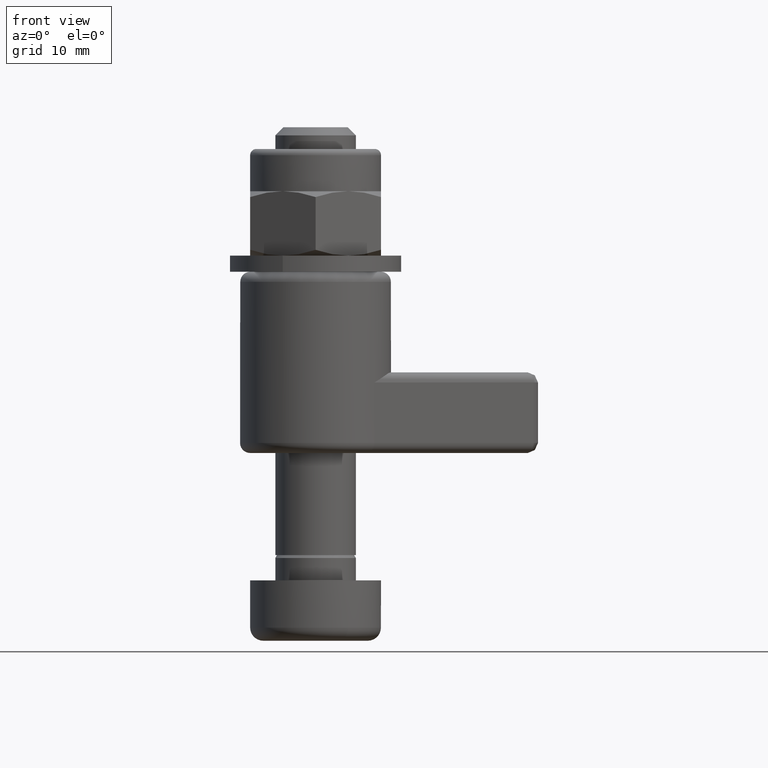
[diagram: clean part render]
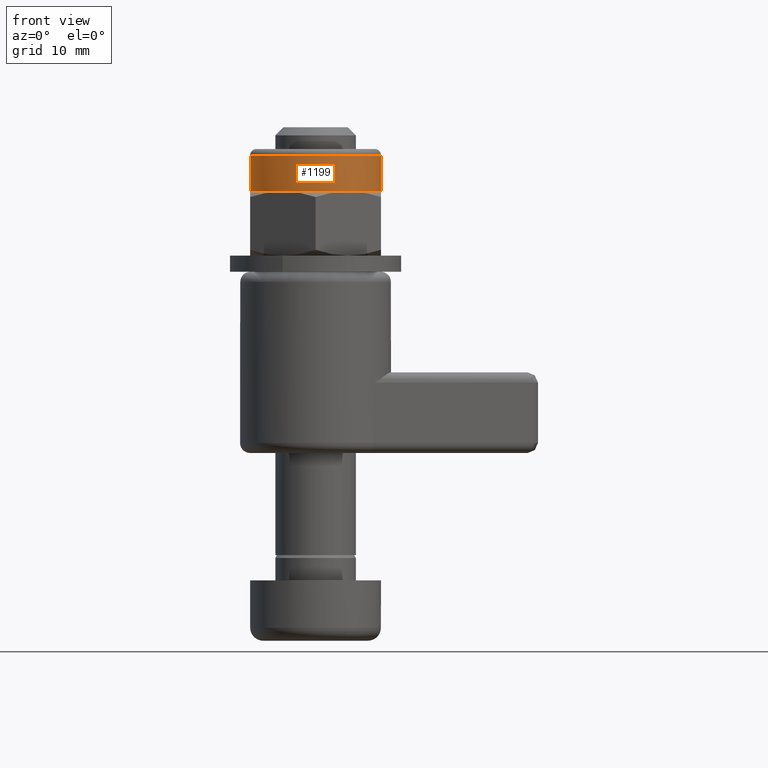
[diagram: same view with one face highlighted and labeled with its STEP entity id]
A machine part, front view. The second image highlights one B-rep face of the part: STEP entity #1199.
In plain terms, the highlighted cylindrical surface (bore or boss wall) has radius 6.5 mm, axis along (0, 0, -1).
Its self-contained STEP definition (entity closure, byte-faithful):
#100=LINE('',#1968,#165);
#165=VECTOR('',#1588,6.49999999999996);
#230=CYLINDRICAL_SURFACE('',#1410,6.49999999999996);
#266=FACE_OUTER_BOUND('',#345,.T.);
#345=EDGE_LOOP('',(#813,#814,#815,#816,#817,#818,#819,#820,#821));
#434=CIRCLE('',#1409,6.49999999999996);
#435=CIRCLE('',#1411,6.49999999999996);
#436=CIRCLE('',#1412,6.49999999999996);
#437=CIRCLE('',#1413,6.49999999999996);
#438=CIRCLE('',#1414,6.49999999999996);
#439=CIRCLE('',#1415,6.49999999999996);
#440=CIRCLE('',#1416,6.49999999999996);
#510=VERTEX_POINT('',#1963);
#511=VERTEX_POINT('',#1967);
#512=VERTEX_POINT('',#1969);
#513=VERTEX_POINT('',#1971);
#514=VERTEX_POINT('',#1973);
#515=VERTEX_POINT('',#1975);
#516=VERTEX_POINT('',#1977);
#627=EDGE_CURVE('',#510,#510,#434,.T.);
#628=EDGE_CURVE('',#510,#511,#100,.T.);
#629=EDGE_CURVE('',#512,#511,#435,.T.);
#630=EDGE_CURVE('',#513,#512,#436,.T.);
#631=EDGE_CURVE('',#514,#513,#437,.T.);
#632=EDGE_CURVE('',#515,#514,#438,.T.);
#633=EDGE_CURVE('',#516,#515,#439,.T.);
#634=EDGE_CURVE('',#511,#516,#440,.T.);
#813=ORIENTED_EDGE('',*,*,#627,.F.);
#814=ORIENTED_EDGE('',*,*,#628,.T.);
#815=ORIENTED_EDGE('',*,*,#629,.F.);
#816=ORIENTED_EDGE('',*,*,#630,.F.);
#817=ORIENTED_EDGE('',*,*,#631,.F.);
#818=ORIENTED_EDGE('',*,*,#632,.F.);
#819=ORIENTED_EDGE('',*,*,#633,.F.);
#820=ORIENTED_EDGE('',*,*,#634,.F.);
#821=ORIENTED_EDGE('',*,*,#628,.F.);
#1199=ADVANCED_FACE('',(#266),#230,.T.);
#1409=AXIS2_PLACEMENT_3D('',#1965,#1584,#1585);
#1410=AXIS2_PLACEMENT_3D('',#1966,#1586,#1587);
#1411=AXIS2_PLACEMENT_3D('',#1970,#1589,#1590);
#1412=AXIS2_PLACEMENT_3D('',#1972,#1591,#1592);
#1413=AXIS2_PLACEMENT_3D('',#1974,#1593,#1594);
#1414=AXIS2_PLACEMENT_3D('',#1976,#1595,#1596);
#1415=AXIS2_PLACEMENT_3D('',#1978,#1597,#1598);
#1416=AXIS2_PLACEMENT_3D('',#1979,#1599,#1600);
#1584=DIRECTION('center_axis',(0.,0.,1.));
#1585=DIRECTION('ref_axis',(1.,9.76996261670138E-15,0.));
#1586=DIRECTION('center_axis',(0.,0.,-1.));
#1587=DIRECTION('ref_axis',(1.,0.,-9.31236240493655E-17));
#1588=DIRECTION('',(0.,0.,-1.));
#1589=DIRECTION('center_axis',(0.,0.,-1.));
#1590=DIRECTION('ref_axis',(1.,0.,-9.31236240493655E-17));
#1591=DIRECTION('center_axis',(0.,0.,-1.));
#1592=DIRECTION('ref_axis',(1.,0.,-9.31236240493655E-17));
#1593=DIRECTION('center_axis',(0.,0.,-1.));
#1594=DIRECTION('ref_axis',(1.,0.,-9.31236240493655E-17));
#1595=DIRECTION('center_axis',(0.,0.,-1.));
#1596=DIRECTION('ref_axis',(1.,0.,-9.31236240493655E-17));
#1597=DIRECTION('center_axis',(0.,0.,-1.));
#1598=DIRECTION('ref_axis',(1.,0.,-9.31236240493655E-17));
#1599=DIRECTION('center_axis',(0.,0.,-1.));
#1600=DIRECTION('ref_axis',(1.,0.,-9.31236240493655E-17));
#1963=CARTESIAN_POINT('',(-6.49999999999996,-6.43007774280043E-14,9.975));
#1965=CARTESIAN_POINT('Origin',(0.,0.,9.975));
#1966=CARTESIAN_POINT('Origin',(0.,0.,8.5));
#1967=CARTESIAN_POINT('',(-6.5,-6.55031584528842E-14,6.4));
#1968=CARTESIAN_POINT('',(-6.49999999999996,7.96020419445774E-16,8.5));
#1969=CARTESIAN_POINT('',(-3.24999999999994,-5.62916512459888,6.4));
#1970=CARTESIAN_POINT('Origin',(0.,0.,6.4));
#1971=CARTESIAN_POINT('',(3.25000000000005,-5.62916512459881,6.4));
#1972=CARTESIAN_POINT('Origin',(0.,0.,6.4));
#1973=CARTESIAN_POINT('',(6.49999999999996,0.,6.4));
#1974=CARTESIAN_POINT('Origin',(0.,0.,6.4));
#1975=CARTESIAN_POINT('',(3.24999999999995,5.62916512459888,6.4));
#1976=CARTESIAN_POINT('Origin',(0.,0.,6.4));
#1977=CARTESIAN_POINT('',(-3.25000000000006,5.62916512459882,6.4));
#1978=CARTESIAN_POINT('Origin',(0.,0.,6.4));
#1979=CARTESIAN_POINT('Origin',(0.,0.,6.4));